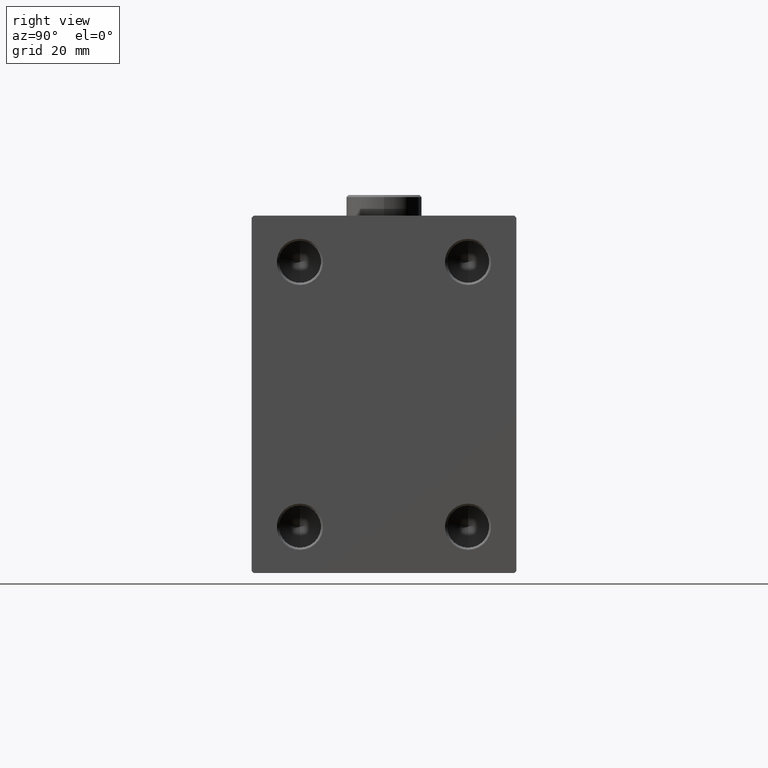
[diagram: clean part render]
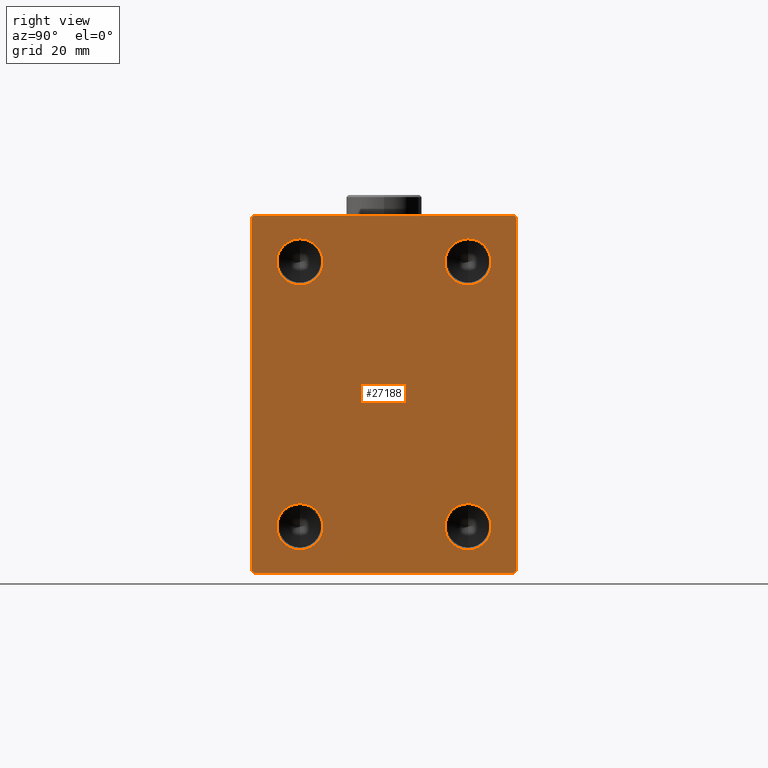
[diagram: same view with one face highlighted and labeled with its STEP entity id]
A machine part, right view. The second image highlights one B-rep face of the part: STEP entity #27188.
In plain terms, the highlighted planar face has unit normal (1, 0, 0).
Its self-contained STEP definition (entity closure, byte-faithful):
#115 = EDGE_CURVE ( 'NONE', #22466, #7712, #12602, .T. ) ;
#226 = VECTOR ( 'NONE', #18389, 1000.000000000000114 ) ;
#298 = ORIENTED_EDGE ( 'NONE', *, *, #12284, .F. ) ;
#521 = ORIENTED_EDGE ( 'NONE', *, *, #115, .T. ) ;
#790 = CARTESIAN_POINT ( 'NONE',  ( 123.0000000000000000, 31.50000000000001421, -42.00000000000000711 ) ) ;
#1044 = VECTOR ( 'NONE', #43769, 999.9999999999998863 ) ;
#1122 = DIRECTION ( 'NONE',  ( 0.000000000000000000, -1.632680918566406547E-16, 1.000000000000000000 ) ) ;
#2299 = CARTESIAN_POINT ( 'NONE',  ( 123.0000000000000000, 19.99999999999999645, -31.50000000000000000 ) ) ;
#2597 = VERTEX_POINT ( 'NONE', #11816 ) ;
#2684 = FACE_BOUND ( 'NONE', #24487, .T. ) ;
#2942 = CARTESIAN_POINT ( 'NONE',  ( 123.0000000000000000, 31.00000000000001421, -42.50000000000000711 ) ) ;
#3031 = EDGE_CURVE ( 'NONE', #44438, #19244, #8777, .T. ) ;
#3501 = AXIS2_PLACEMENT_3D ( 'NONE', #13940, #8414, #22440 ) ;
#3664 = VERTEX_POINT ( 'NONE', #23490 ) ;
#3786 = ORIENTED_EDGE ( 'NONE', *, *, #15115, .F. ) ;
#3893 = CARTESIAN_POINT ( 'NONE',  ( 123.0000000000000000, 19.99999999999999645, 37.00000000000000711 ) ) ;
#4344 = VERTEX_POINT ( 'NONE', #3893 ) ;
#5526 = DIRECTION ( 'NONE',  ( 0.000000000000000000, 0.000000000000000000, -1.000000000000000000 ) ) ;
#5694 = CARTESIAN_POINT ( 'NONE',  ( 123.0000000000000000, 0.000000000000000000, 0.000000000000000000 ) ) ;
#6201 = DIRECTION ( 'NONE',  ( 1.000000000000000000, -0.000000000000000000, -0.000000000000000000 ) ) ;
#6370 = FACE_BOUND ( 'NONE', #26794, .T. ) ;
#6515 = DIRECTION ( 'NONE',  ( -0.000000000000000000, -0.7071067811865474617, 0.7071067811865474617 ) ) ;
#6734 = LINE ( 'NONE', #21213, #28559 ) ;
#7188 = CARTESIAN_POINT ( 'NONE',  ( 123.0000000000000000, -20.00000000000000355, 25.99999999999999289 ) ) ;
#7194 = ORIENTED_EDGE ( 'NONE', *, *, #35920, .F. ) ;
#7608 = CIRCLE ( 'NONE', #24488, 5.500000000000005329 ) ;
#7712 = VERTEX_POINT ( 'NONE', #27764 ) ;
#7931 = CIRCLE ( 'NONE', #3501, 5.500000000000005329 ) ;
#8414 = DIRECTION ( 'NONE',  ( 1.000000000000000000, -0.000000000000000000, -0.000000000000000000 ) ) ;
#8533 = CARTESIAN_POINT ( 'NONE',  ( 123.0000000000000000, -36.75000000000022737, -36.74999999999971578 ) ) ;
#8777 = LINE ( 'NONE', #29944, #37133 ) ;
#9370 = EDGE_CURVE ( 'NONE', #2597, #17165, #33612, .T. ) ;
#9383 = FACE_BOUND ( 'NONE', #27947, .T. ) ;
#9528 = CARTESIAN_POINT ( 'NONE',  ( 123.0000000000000000, -31.00000000000000000, -42.50000000000000711 ) ) ;
#9757 = CIRCLE ( 'NONE', #31806, 5.500000000000005329 ) ;
#9868 = DIRECTION ( 'NONE',  ( 0.000000000000000000, 0.000000000000000000, -1.000000000000000000 ) ) ;
#9939 = VERTEX_POINT ( 'NONE', #29606 ) ;
#10060 = CARTESIAN_POINT ( 'NONE',  ( 123.0000000000000000, -20.00000000000000355, 37.00000000000000711 ) ) ;
#10359 = EDGE_LOOP ( 'NONE', ( #32477, #43694 ) ) ;
#10808 = CARTESIAN_POINT ( 'NONE',  ( 123.0000000000000000, 19.99999999999999645, 31.50000000000000000 ) ) ;
#11446 = LINE ( 'NONE', #42094, #24525 ) ;
#11503 = CARTESIAN_POINT ( 'NONE',  ( 123.0000000000000000, -31.50000000000000000, 41.99999999999998579 ) ) ;
#11816 = CARTESIAN_POINT ( 'NONE',  ( 123.0000000000000000, 19.99999999999999645, -37.00000000000000711 ) ) ;
#11846 = CARTESIAN_POINT ( 'NONE',  ( 123.0000000000000000, -20.00000000000000355, 31.50000000000000000 ) ) ;
#11960 = CARTESIAN_POINT ( 'NONE',  ( 123.0000000000000000, 31.50000000000001421, -42.50000000000000711 ) ) ;
#12050 = VECTOR ( 'NONE', #15580, 1000.000000000000000 ) ;
#12071 = DIRECTION ( 'NONE',  ( 0.000000000000000000, 0.000000000000000000, -1.000000000000000000 ) ) ;
#12221 = AXIS2_PLACEMENT_3D ( 'NONE', #5694, #27310, #16728 ) ;
#12284 = EDGE_CURVE ( 'NONE', #17165, #2597, #26342, .T. ) ;
#12426 = ORIENTED_EDGE ( 'NONE', *, *, #45142, .F. ) ;
#12526 = DIRECTION ( 'NONE',  ( 0.000000000000000000, 0.000000000000000000, -1.000000000000000000 ) ) ;
#12602 = LINE ( 'NONE', #40487, #12050 ) ;
#13762 = EDGE_CURVE ( 'NONE', #34473, #22466, #6734, .T. ) ;
#13940 = CARTESIAN_POINT ( 'NONE',  ( 123.0000000000000000, -20.00000000000000355, 31.50000000000000000 ) ) ;
#14294 = CARTESIAN_POINT ( 'NONE',  ( 123.0000000000000000, 19.99999999999999645, -31.50000000000000000 ) ) ;
#14924 = CIRCLE ( 'NONE', #23750, 5.500000000000005329 ) ;
#15115 = EDGE_CURVE ( 'NONE', #4344, #29931, #14924, .T. ) ;
#15230 = DIRECTION ( 'NONE',  ( 1.000000000000000000, -0.000000000000000000, -0.000000000000000000 ) ) ;
#15325 = AXIS2_PLACEMENT_3D ( 'NONE', #2299, #6201, #5526 ) ;
#15580 = DIRECTION ( 'NONE',  ( 0.000000000000000000, -1.000000000000000000, -1.101411730778925171E-16 ) ) ;
#15951 = AXIS2_PLACEMENT_3D ( 'NONE', #14294, #21423, #32026 ) ;
#16189 = VERTEX_POINT ( 'NONE', #7188 ) ;
#16297 = ORIENTED_EDGE ( 'NONE', *, *, #16475, .T. ) ;
#16475 = EDGE_CURVE ( 'NONE', #7712, #32045, #21385, .T. ) ;
#16728 = DIRECTION ( 'NONE',  ( 0.000000000000000000, 0.000000000000000000, -1.000000000000000000 ) ) ;
#16993 = EDGE_CURVE ( 'NONE', #29931, #4344, #28173, .T. ) ;
#17156 = CARTESIAN_POINT ( 'NONE',  ( 123.0000000000000000, 19.99999999999999645, 31.50000000000000000 ) ) ;
#17165 = VERTEX_POINT ( 'NONE', #45162 ) ;
#17593 = EDGE_CURVE ( 'NONE', #32045, #36402, #11446, .T. ) ;
#17650 = CARTESIAN_POINT ( 'NONE',  ( 123.0000000000000000, 19.99999999999999645, 25.99999999999999289 ) ) ;
#17928 = DIRECTION ( 'NONE',  ( 0.000000000000000000, 0.000000000000000000, -1.000000000000000000 ) ) ;
#18283 = CARTESIAN_POINT ( 'NONE',  ( 123.0000000000000000, 31.00000000000000000, 42.49999999999999289 ) ) ;
#18389 = DIRECTION ( 'NONE',  ( 0.000000000000000000, -0.7071067811865474617, -0.7071067811865474617 ) ) ;
#18623 = LINE ( 'NONE', #11960, #39566 ) ;
#18641 = LINE ( 'NONE', #8533, #1044 ) ;
#18906 = ORIENTED_EDGE ( 'NONE', *, *, #24321, .T. ) ;
#19244 = VERTEX_POINT ( 'NONE', #2942 ) ;
#19950 = FACE_BOUND ( 'NONE', #10359, .T. ) ;
#20400 = PLANE ( 'NONE',  #12221 ) ;
#20487 = EDGE_CURVE ( 'NONE', #9939, #3664, #7608, .T. ) ;
#20622 = ORIENTED_EDGE ( 'NONE', *, *, #35960, .T. ) ;
#21213 = CARTESIAN_POINT ( 'NONE',  ( 123.0000000000000000, 36.75000000000000000, 36.75000000000000000 ) ) ;
#21385 = LINE ( 'NONE', #39601, #226 ) ;
#21423 = DIRECTION ( 'NONE',  ( 1.000000000000000000, -0.000000000000000000, -0.000000000000000000 ) ) ;
#22201 = CARTESIAN_POINT ( 'NONE',  ( 123.0000000000000000, 36.75000000000001421, -36.75000000000001421 ) ) ;
#22440 = DIRECTION ( 'NONE',  ( 0.000000000000000000, 0.000000000000000000, -1.000000000000000000 ) ) ;
#22466 = VERTEX_POINT ( 'NONE', #18283 ) ;
#22658 = ORIENTED_EDGE ( 'NONE', *, *, #9370, .F. ) ;
#22751 = ORIENTED_EDGE ( 'NONE', *, *, #13762, .T. ) ;
#23107 = DIRECTION ( 'NONE',  ( 1.000000000000000000, -0.000000000000000000, -0.000000000000000000 ) ) ;
#23490 = CARTESIAN_POINT ( 'NONE',  ( 123.0000000000000000, -20.00000000000000355, -25.99999999999999289 ) ) ;
#23750 = AXIS2_PLACEMENT_3D ( 'NONE', #10808, #38907, #17928 ) ;
#24185 = ORIENTED_EDGE ( 'NONE', *, *, #35375, .T. ) ;
#24321 = EDGE_CURVE ( 'NONE', #36402, #44438, #18641, .T. ) ;
#24487 = EDGE_LOOP ( 'NONE', ( #3786, #31946 ) ) ;
#24488 = AXIS2_PLACEMENT_3D ( 'NONE', #38013, #23107, #12526 ) ;
#24525 = VECTOR ( 'NONE', #38635, 1000.000000000000000 ) ;
#25358 = DIRECTION ( 'NONE',  ( 0.000000000000000000, 0.000000000000000000, -1.000000000000000000 ) ) ;
#25498 = CIRCLE ( 'NONE', #37305, 5.500000000000005329 ) ;
#26053 = ORIENTED_EDGE ( 'NONE', *, *, #3031, .T. ) ;
#26284 = DIRECTION ( 'NONE',  ( 1.000000000000000000, -0.000000000000000000, -0.000000000000000000 ) ) ;
#26342 = CIRCLE ( 'NONE', #15325, 5.500000000000005329 ) ;
#26755 = CARTESIAN_POINT ( 'NONE',  ( 123.0000000000000000, -31.50000000000000000, -42.00000000000000000 ) ) ;
#26794 = EDGE_LOOP ( 'NONE', ( #298, #22658 ) ) ;
#27091 = FACE_OUTER_BOUND ( 'NONE', #39106, .T. ) ;
#27188 = ADVANCED_FACE ( 'NONE', ( #2684, #9383, #19950, #6370, #27091 ), #20400, .T. ) ;
#27310 = DIRECTION ( 'NONE',  ( 1.000000000000000000, 0.000000000000000000, 0.000000000000000000 ) ) ;
#27764 = CARTESIAN_POINT ( 'NONE',  ( 123.0000000000000000, -31.00000000000000000, 42.49999999999998579 ) ) ;
#27947 = EDGE_LOOP ( 'NONE', ( #7194, #12426 ) ) ;
#28173 = CIRCLE ( 'NONE', #34081, 5.500000000000005329 ) ;
#28559 = VECTOR ( 'NONE', #6515, 1000.000000000000114 ) ;
#29606 = CARTESIAN_POINT ( 'NONE',  ( 123.0000000000000000, -20.00000000000000355, -37.00000000000000711 ) ) ;
#29931 = VERTEX_POINT ( 'NONE', #17650 ) ;
#29944 = CARTESIAN_POINT ( 'NONE',  ( 123.0000000000000000, -31.50000000000000000, -42.50000000000000711 ) ) ;
#30202 = CARTESIAN_POINT ( 'NONE',  ( 123.0000000000000000, -20.00000000000000355, -31.50000000000000000 ) ) ;
#30634 = EDGE_CURVE ( 'NONE', #3664, #9939, #25498, .T. ) ;
#31806 = AXIS2_PLACEMENT_3D ( 'NONE', #11846, #32324, #12071 ) ;
#31946 = ORIENTED_EDGE ( 'NONE', *, *, #16993, .F. ) ;
#32026 = DIRECTION ( 'NONE',  ( 0.000000000000000000, 0.000000000000000000, -1.000000000000000000 ) ) ;
#32045 = VERTEX_POINT ( 'NONE', #11503 ) ;
#32259 = ORIENTED_EDGE ( 'NONE', *, *, #17593, .T. ) ;
#32324 = DIRECTION ( 'NONE',  ( 1.000000000000000000, -0.000000000000000000, -0.000000000000000000 ) ) ;
#32477 = ORIENTED_EDGE ( 'NONE', *, *, #30634, .F. ) ;
#33515 = CARTESIAN_POINT ( 'NONE',  ( 123.0000000000000000, 31.50000000000000000, 41.99999999999999289 ) ) ;
#33612 = CIRCLE ( 'NONE', #15951, 5.500000000000005329 ) ;
#34081 = AXIS2_PLACEMENT_3D ( 'NONE', #17156, #15230, #25358 ) ;
#34393 = VECTOR ( 'NONE', #36032, 1000.000000000000114 ) ;
#34473 = VERTEX_POINT ( 'NONE', #33515 ) ;
#35375 = EDGE_CURVE ( 'NONE', #36767, #34473, #18623, .T. ) ;
#35920 = EDGE_CURVE ( 'NONE', #43036, #16189, #7931, .T. ) ;
#35960 = EDGE_CURVE ( 'NONE', #19244, #36767, #42500, .T. ) ;
#36032 = DIRECTION ( 'NONE',  ( -0.000000000000000000, 0.7071067811865474617, 0.7071067811865474617 ) ) ;
#36402 = VERTEX_POINT ( 'NONE', #26755 ) ;
#36767 = VERTEX_POINT ( 'NONE', #790 ) ;
#37133 = VECTOR ( 'NONE', #44691, 1000.000000000000000 ) ;
#37305 = AXIS2_PLACEMENT_3D ( 'NONE', #30202, #26284, #9868 ) ;
#38013 = CARTESIAN_POINT ( 'NONE',  ( 123.0000000000000000, -20.00000000000000355, -31.50000000000000000 ) ) ;
#38635 = DIRECTION ( 'NONE',  ( 0.000000000000000000, 0.000000000000000000, -1.000000000000000000 ) ) ;
#38907 = DIRECTION ( 'NONE',  ( 1.000000000000000000, -0.000000000000000000, -0.000000000000000000 ) ) ;
#39106 = EDGE_LOOP ( 'NONE', ( #521, #16297, #32259, #18906, #26053, #20622, #24185, #22751 ) ) ;
#39566 = VECTOR ( 'NONE', #1122, 1000.000000000000000 ) ;
#39601 = CARTESIAN_POINT ( 'NONE',  ( 123.0000000000000000, -36.74999999999999289, 36.74999999999999289 ) ) ;
#40487 = CARTESIAN_POINT ( 'NONE',  ( 123.0000000000000000, 31.50000000000000000, 42.49999999999999289 ) ) ;
#42094 = CARTESIAN_POINT ( 'NONE',  ( 123.0000000000000000, -31.50000000000000000, 42.49999999999998579 ) ) ;
#42500 = LINE ( 'NONE', #22201, #34393 ) ;
#43036 = VERTEX_POINT ( 'NONE', #10060 ) ;
#43694 = ORIENTED_EDGE ( 'NONE', *, *, #20487, .F. ) ;
#43769 = DIRECTION ( 'NONE',  ( -0.000000000000000000, 0.7071067811865425767, -0.7071067811865525687 ) ) ;
#44438 = VERTEX_POINT ( 'NONE', #9528 ) ;
#44691 = DIRECTION ( 'NONE',  ( 0.000000000000000000, 1.000000000000000000, 0.000000000000000000 ) ) ;
#45142 = EDGE_CURVE ( 'NONE', #16189, #43036, #9757, .T. ) ;
#45162 = CARTESIAN_POINT ( 'NONE',  ( 123.0000000000000000, 19.99999999999999645, -25.99999999999999289 ) ) ;